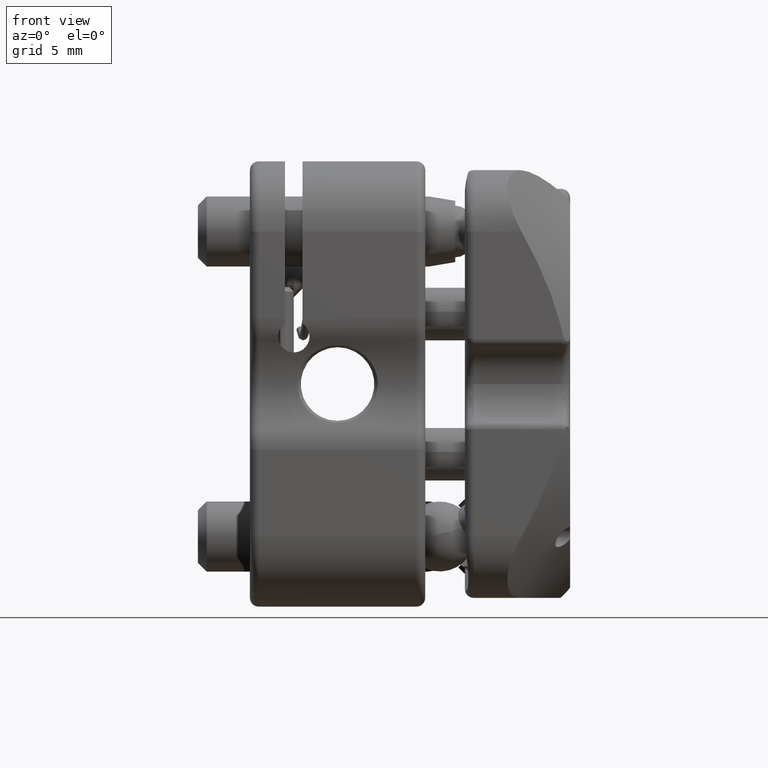
[diagram: clean part render]
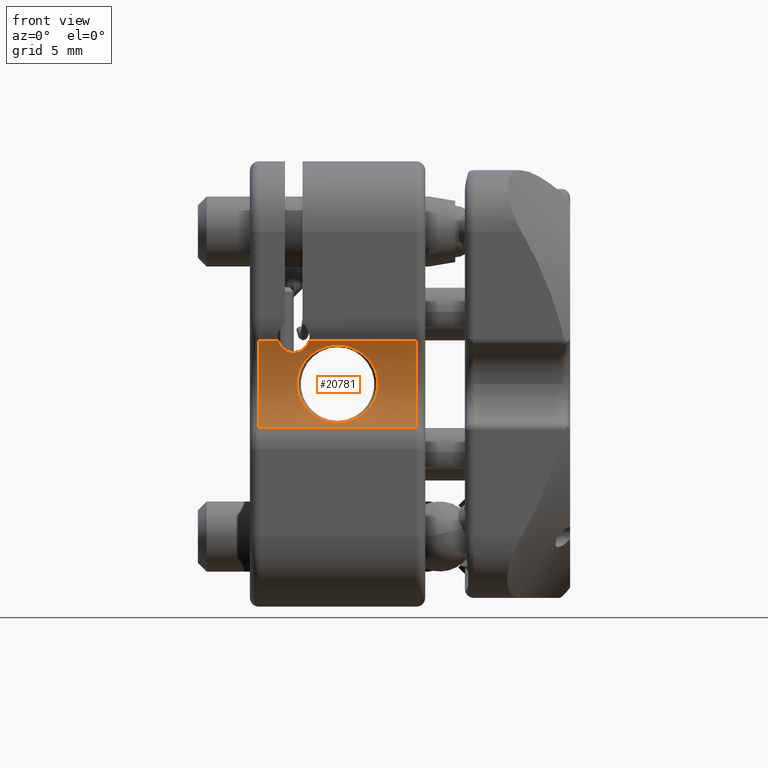
[diagram: same view with one face highlighted and labeled with its STEP entity id]
A machine part, front view. The second image highlights one B-rep face of the part: STEP entity #20781.
In plain terms, the highlighted cylindrical surface (partial cylindrical patch) has radius 5 mm, axis along (-1, 0, 0).
Its self-contained STEP definition (entity closure, byte-faithful):
#195 = CARTESIAN_POINT ( 'NONE',  ( -16.73207782478297645, 0.5220016386242981588, 7.743418047382663261 ) ) ;
#488 = CARTESIAN_POINT ( 'NONE',  ( -16.83384521158561142, 0.4372832412205611696, 7.919107547975817063 ) ) ;
#1123 = CARTESIAN_POINT ( 'NONE',  ( -12.89271433321157723, 0.5144612741522207600, 3.452399975789759878 ) ) ;
#1274 = CARTESIAN_POINT ( 'NONE',  ( -9.000000000000001776, 0.3333333333333278192, 8.099689127586877646 ) ) ;
#1412 = CARTESIAN_POINT ( 'NONE',  ( -13.19585157060656577, 0.4842849794610407099, 3.393647779630147188 ) ) ;
#1465 = AXIS2_PLACEMENT_3D ( 'NONE', #7992, #10932, #24000 ) ;
#1735 = VERTEX_POINT ( 'NONE', #18975 ) ;
#2233 = EDGE_CURVE ( 'NONE', #42876, #18461, #24225, .T. ) ;
#3386 = CARTESIAN_POINT ( 'NONE',  ( -13.49999999999999822, 0.4843168524465564784, 3.393712408199161423 ) ) ;
#4134 = CARTESIAN_POINT ( 'NONE',  ( -15.79992092743605703, 0.9999650210742575540, 5.753598992423793135 ) ) ;
#4465 = CARTESIAN_POINT ( 'NONE',  ( -13.19395894131952574, 0.4916991702465550729, 7.801991388709747177 ) ) ;
#4609 = CARTESIAN_POINT ( 'NONE',  ( -11.20016222801968553, 0.9999310325169963320, 5.456361497769407265 ) ) ;
#4897 = CARTESIAN_POINT ( 'NONE',  ( -11.21502257047841944, 0.9935596431238917781, 5.896807268216059050 ) ) ;
#5727 = B_SPLINE_CURVE_WITH_KNOTS ( 'NONE', 3,
 ( #3386, #33310, #40009, #29846, #33145, #39853, #13468, #12871, #9506, #20160, #32709, #36070, #16218, #39397, #19562, #4134, #33904, #33603, #30297, #14056, #40314, #27423, #20461, #13767, #7345, #36947, #40753, #20601 ),
 .UNSPECIFIED., .F., .F.,
 ( 4, 2, 2, 2, 2, 2, 2, 2, 2, 2, 2, 2, 2, 4 ),
 ( 0.0000000000000000000, 0.03124999999999992367, 0.06249999999999984734, 0.09374999999999977796, 0.1249999999999996947, 0.1874999999999996392, 0.2187499999999997224, 0.2499999999999997780, 0.2812499999999998890, 0.3124999999999998890, 0.3750000000000000000, 0.4375000000000001665, 0.4687500000000000555, 0.5000000000000000000 ),
 .UNSPECIFIED. ) ;
#6374 = ORIENTED_EDGE ( 'NONE', *, *, #20529, .T. ) ;
#7150 = LINE ( 'NONE', #19867, #26950 ) ;
#7345 = CARTESIAN_POINT ( 'NONE',  ( -14.10392599552661430, 0.5194647987167151371, 7.744288392959989054 ) ) ;
#7817 = CARTESIAN_POINT ( 'NONE',  ( -11.32097254235742234, 0.9493934958361103238, 4.883030281688116148 ) ) ;
#7992 = CARTESIAN_POINT ( 'NONE',  ( -9.000000000000001776, -4.000000000000007105, 5.605250869737585795 ) ) ;
#8107 = CARTESIAN_POINT ( 'NONE',  ( -11.19984033455274464, 1.000067877631775071, 5.749471513497193875 ) ) ;
#8461 = EDGE_CURVE ( 'NONE', #14117, #20370, #27224, .T. ) ;
#8840 = EDGE_LOOP ( 'NONE', ( #12995, #42933 ) ) ;
#8962 = AXIS2_PLACEMENT_3D ( 'NONE', #15935, #13018, #12589 ) ;
#9506 = CARTESIAN_POINT ( 'NONE',  ( -15.02089025201255446, 0.7157850331629382890, 3.940125060246654876 ) ) ;
#9646 = B_SPLINE_CURVE_WITH_KNOTS ( 'NONE', 3,
 ( #34529, #11627, #4465, #14540, #14698, #24978, #28043, #34674, #34388, #38167, #34811, #37739, #31056, #4897, #8107, #4609, #34952, #14986, #7817, #28321, #41235, #24397, #21374, #18314, #17893, #1123, #1412, #24698 ),
 .UNSPECIFIED., .F., .F.,
 ( 4, 2, 2, 2, 2, 2, 2, 2, 2, 2, 2, 2, 2, 4 ),
 ( 0.5000000000000000000, 0.5312500000000002220, 0.5625000000000004441, 0.6250000000000006661, 0.6562500000000006661, 0.6875000000000006661, 0.7187500000000007772, 0.7500000000000007772, 0.7812500000000007772, 0.8125000000000008882, 0.8750000000000005551, 0.9062500000000004441, 0.9375000000000002220, 1.000000000000000000 ),
 .UNSPECIFIED. ) ;
#10120 = CARTESIAN_POINT ( 'NONE',  ( -15.57873006826380546, 0.6355971599576105691, 7.484457838895064441 ) ) ;
#10740 = VECTOR ( 'NONE', #20632, 1000.000000000000000 ) ;
#10932 = DIRECTION ( 'NONE',  ( 1.000000000000000000, -0.0000000000000000000, -0.0000000000000000000 ) ) ;
#11627 = CARTESIAN_POINT ( 'NONE',  ( -13.34539002772576666, 0.4844056957484229042, 7.816609184278833666 ) ) ;
#12589 = DIRECTION ( 'NONE',  ( 0.0000000000000000000, -1.000000000000000000, 0.0000000000000000000 ) ) ;
#12729 = CARTESIAN_POINT ( 'NONE',  ( -9.000000000000001776, 0.3333333333333278192, 3.110812611888293500 ) ) ;
#12749 = CARTESIAN_POINT ( 'NONE',  ( -15.28072213350066733, 0.5149408190361393078, 7.755594036747993414 ) ) ;
#12871 = CARTESIAN_POINT ( 'NONE',  ( -14.90403635588739562, 0.6817343741012712455, 3.847794715834321977 ) ) ;
#12995 = ORIENTED_EDGE ( 'NONE', *, *, #28367, .T. ) ;
#13018 = DIRECTION ( 'NONE',  ( -1.000000000000000000, 0.0000000000000000000, 0.0000000000000000000 ) ) ;
#13468 = CARTESIAN_POINT ( 'NONE',  ( -14.65769571593376241, 0.6190055997106769237, 3.688984668925369803 ) ) ;
#13615 = DIRECTION ( 'NONE',  ( -1.000000000000000000, 0.0000000000000000000, 0.0000000000000000000 ) ) ;
#13767 = CARTESIAN_POINT ( 'NONE',  ( -14.24571728006381477, 0.5393769007704554141, 7.702341835394189040 ) ) ;
#13941 = ORIENTED_EDGE ( 'NONE', *, *, #38920, .T. ) ;
#14056 = CARTESIAN_POINT ( 'NONE',  ( -15.50503941541396458, 0.8801157400671859588, 6.727073294027504424 ) ) ;
#14117 = VERTEX_POINT ( 'NONE', #22943 ) ;
#14540 = CARTESIAN_POINT ( 'NONE',  ( -12.89586865464874954, 0.5195330242406136501, 7.744141139593931911 ) ) ;
#14698 = CARTESIAN_POINT ( 'NONE',  ( -12.74867521617533050, 0.5402913714008955592, 7.700342642349582434 ) ) ;
#14986 = CARTESIAN_POINT ( 'NONE',  ( -11.27538806378306901, 0.9682941506458706549, 5.025068367314447393 ) ) ;
#15935 = CARTESIAN_POINT ( 'NONE',  ( -18.00000000000000355, -4.000000000000007105, 5.605250869737585795 ) ) ;
#16218 = CARTESIAN_POINT ( 'NONE',  ( -15.72520163049641262, 0.9685389942114351891, 5.026960452250261113 ) ) ;
#16514 = CARTESIAN_POINT ( 'NONE',  ( -15.17979762852386827, 0.4317665214357067627, 7.922169477455333286 ) ) ;
#16824 = CARTESIAN_POINT ( 'NONE',  ( -15.78632397007309685, 0.6645977154186614166, 7.405675363737428185 ) ) ;
#17569 = VERTEX_POINT ( 'NONE', #35538 ) ;
#17893 = CARTESIAN_POINT ( 'NONE',  ( -12.47352515345010993, 0.5897545816279353703, 3.620827837147673645 ) ) ;
#18057 = LINE ( 'NONE', #30905, #10740 ) ;
#18314 = CARTESIAN_POINT ( 'NONE',  ( -12.34316268574841935, 0.6187644993440789554, 3.688347142796576605 ) ) ;
#18461 = VERTEX_POINT ( 'NONE', #20994 ) ;
#18776 = ORIENTED_EDGE ( 'NONE', *, *, #8461, .T. ) ;
#18975 = CARTESIAN_POINT ( 'NONE',  ( -13.49673093385898426, 0.4843179541238020192, 7.816787097413462782 ) ) ;
#19209 = CARTESIAN_POINT ( 'NONE',  ( -18.00000000000000355, 0.3333333333333278192, 8.099689127586877646 ) ) ;
#19562 = CARTESIAN_POINT ( 'NONE',  ( -15.80007841369381438, 1.000034698710987824, 5.459270086218844575 ) ) ;
#19858 = CARTESIAN_POINT ( 'NONE',  ( -8.500000000000000000, -4.000000000000007105, 5.605250869737585795 ) ) ;
#19867 = CARTESIAN_POINT ( 'NONE',  ( -8.500000000000000000, 0.3333333333333278192, 8.099689127586877646 ) ) ;
#19916 = EDGE_CURVE ( 'NONE', #1735, #17569, #9646, .T. ) ;
#20160 = CARTESIAN_POINT ( 'NONE',  ( -15.33572699143959817, 0.8154346850731156726, 4.242650944763052046 ) ) ;
#20320 = CARTESIAN_POINT ( 'NONE',  ( -15.34515098324822446, 0.5499678380533923328, 7.679579107568803131 ) ) ;
#20370 = VERTEX_POINT ( 'NONE', #12729 ) ;
#20461 = CARTESIAN_POINT ( 'NONE',  ( -14.66319642768533704, 0.6142110730783755246, 7.535014802198962691 ) ) ;
#20529 = EDGE_CURVE ( 'NONE', #29398, #14117, #24706, .T. ) ;
#20601 = CARTESIAN_POINT ( 'NONE',  ( -13.49673093385898426, 0.4843179541238020192, 7.816787097413462782 ) ) ;
#20632 = DIRECTION ( 'NONE',  ( -1.000000000000000000, 0.0000000000000000000, 0.0000000000000000000 ) ) ;
#20781 = ADVANCED_FACE ( 'NONE', ( #32395, #38658 ), #35025, .F. ) ;
#20994 = CARTESIAN_POINT ( 'NONE',  ( -16.87621023171608670, 0.3333333333333278192, 8.099689127586877646 ) ) ;
#21235 = CARTESIAN_POINT ( 'NONE',  ( -15.12378976828391508, 0.3333333333333278192, 8.099689127586875870 ) ) ;
#21374 = CARTESIAN_POINT ( 'NONE',  ( -12.09344051932874997, 0.6823995299857952279, 3.849506002067372812 ) ) ;
#22943 = CARTESIAN_POINT ( 'NONE',  ( -18.00000000000000355, 0.3333333333333278192, 3.110812611888293500 ) ) ;
#23569 = VECTOR ( 'NONE', #28041, 1000.000000000000000 ) ;
#23609 = ORIENTED_EDGE ( 'NONE', *, *, #33778, .T. ) ;
#23643 = CARTESIAN_POINT ( 'NONE',  ( -16.41837107158072229, 0.6363103297424967941, 7.482718372945718954 ) ) ;
#23998 = AXIS2_PLACEMENT_3D ( 'NONE', #19858, #13615, #33139 ) ;
#24000 = DIRECTION ( 'NONE',  ( 0.0000000000000000000, -1.000000000000000000, 1.908195823574487409E-15 ) ) ;
#24225 = B_SPLINE_CURVE_WITH_KNOTS ( 'NONE', 3,
 ( #26393, #36378, #16514, #12749, #20320, #10120, #16824, #26552, #23643, #195, #488, #26846 ),
 .UNSPECIFIED., .F., .F.,
 ( 4, 2, 2, 2, 2, 4 ),
 ( 1.964321818484475877E-18, 0.0003145531809597261214, 0.0006291063619194502913, 0.001258212723838900366, 0.001887319085758350223, 0.002516425447677800731 ),
 .UNSPECIFIED. ) ;
#24397 = CARTESIAN_POINT ( 'NONE',  ( -11.97957691793452817, 0.7156420093822096762, 3.939719384161359361 ) ) ;
#24698 = CARTESIAN_POINT ( 'NONE',  ( -13.49999999999999822, 0.4843168524465564784, 3.393712408199161423 ) ) ;
#24706 = CIRCLE ( 'NONE', #8962, 5.000000000000000888 ) ;
#24978 = CARTESIAN_POINT ( 'NONE',  ( -12.33739979610329840, 0.6142891387187077168, 7.534747393662518888 ) ) ;
#26393 = CARTESIAN_POINT ( 'NONE',  ( -15.12378976828391508, 0.3333333333333278192, 8.099689127586875870 ) ) ;
#26552 = CARTESIAN_POINT ( 'NONE',  ( -16.21008502577761590, 0.6649239341271686587, 7.404829957772089521 ) ) ;
#26846 = CARTESIAN_POINT ( 'NONE',  ( -16.87621023171608670, 0.3333333333333278192, 8.099689127586877646 ) ) ;
#26950 = VECTOR ( 'NONE', #35783, 1000.000000000000000 ) ;
#27224 = LINE ( 'NONE', #31745, #23569 ) ;
#27423 = CARTESIAN_POINT ( 'NONE',  ( -14.91359319246950221, 0.6818478899306731345, 7.373296741317214575 ) ) ;
#28041 = DIRECTION ( 'NONE',  ( 1.000000000000000000, -0.0000000000000000000, -0.0000000000000000000 ) ) ;
#28043 = CARTESIAN_POINT ( 'NONE',  ( -12.08379744806180867, 0.6826420316695555046, 7.371025098925900743 ) ) ;
#28321 = CARTESIAN_POINT ( 'NONE',  ( -11.49427292443260384, 0.8803976432052977863, 4.485378974427400856 ) ) ;
#28367 = EDGE_CURVE ( 'NONE', #17569, #1735, #5727, .T. ) ;
#29037 = CIRCLE ( 'NONE', #1465, 5.000000000000000888 ) ;
#29398 = VERTEX_POINT ( 'NONE', #19209 ) ;
#29846 = CARTESIAN_POINT ( 'NONE',  ( -14.10167188187518761, 0.5192781082582011987, 3.465828127608825859 ) ) ;
#30297 = CARTESIAN_POINT ( 'NONE',  ( -15.68003144363655466, 0.9497972816727198175, 6.324980449071452071 ) ) ;
#30905 = CARTESIAN_POINT ( 'NONE',  ( -8.500000000000000000, 0.3333333333333278192, 8.099689127586877646 ) ) ;
#31056 = CARTESIAN_POINT ( 'NONE',  ( -11.27471068347962202, 0.9685777256619354514, 6.183073011045282286 ) ) ;
#31745 = CARTESIAN_POINT ( 'NONE',  ( -8.500000000000000000, 0.3333333333333278192, 3.110812611888293500 ) ) ;
#32395 = FACE_BOUND ( 'NONE', #8840, .T. ) ;
#32709 = CARTESIAN_POINT ( 'NONE',  ( -15.50600339019190699, 0.8804937508988053274, 4.485149940175767291 ) ) ;
#33139 = DIRECTION ( 'NONE',  ( 0.0000000000000000000, -1.000000000000000000, 0.0000000000000000000 ) ) ;
#33145 = CARTESIAN_POINT ( 'NONE',  ( -14.24873029863763385, 0.5398654433724674462, 3.509226531102281221 ) ) ;
#33310 = CARTESIAN_POINT ( 'NONE',  ( -13.65370803237590103, 0.4843329601539004825, 3.393745069653959057 ) ) ;
#33603 = CARTESIAN_POINT ( 'NONE',  ( -15.72432639892216955, 0.9681759366116267085, 6.186250365594769818 ) ) ;
#33778 = EDGE_CURVE ( 'NONE', #20370, #42881, #29037, .T. ) ;
#33904 = CARTESIAN_POINT ( 'NONE',  ( -15.78415140706694508, 0.9932127301738177261, 5.902166990120502277 ) ) ;
#34388 = CARTESIAN_POINT ( 'NONE',  ( -11.67344916291895984, 0.8154130080366054356, 6.956903070653624788 ) ) ;
#34529 = CARTESIAN_POINT ( 'NONE',  ( -13.49673093385898426, 0.4843179541238020192, 7.816787097413462782 ) ) ;
#34674 = CARTESIAN_POINT ( 'NONE',  ( -11.76902253548777111, 0.7822842342301887797, 7.068477188301914182 ) ) ;
#34811 = CARTESIAN_POINT ( 'NONE',  ( -11.43640167230373450, 0.9034316884909078249, 6.592730769013288139 ) ) ;
#34952 = CARTESIAN_POINT ( 'NONE',  ( -11.21545803636545635, 0.9933774446807507319, 5.310733979876433253 ) ) ;
#35025 = CYLINDRICAL_SURFACE ( 'NONE', #23998, 5.000000000000000888 ) ;
#35310 = EDGE_CURVE ( 'NONE', #18461, #29398, #7150, .T. ) ;
#35538 = CARTESIAN_POINT ( 'NONE',  ( -13.49999999999999822, 0.4843168524465564784, 3.393712408199161423 ) ) ;
#35581 = ORIENTED_EDGE ( 'NONE', *, *, #2233, .T. ) ;
#35783 = DIRECTION ( 'NONE',  ( -1.000000000000000000, 0.0000000000000000000, 0.0000000000000000000 ) ) ;
#36070 = CARTESIAN_POINT ( 'NONE',  ( -15.68048027271323797, 0.9499789479816628246, 4.886801323297349064 ) ) ;
#36378 = CARTESIAN_POINT ( 'NONE',  ( -15.14495489081882162, 0.3852656239624879797, 8.009472452408985532 ) ) ;
#36947 = CARTESIAN_POINT ( 'NONE',  ( -13.80282276366856564, 0.4914482775333142706, 7.802507332428266551 ) ) ;
#37672 = EDGE_LOOP ( 'NONE', ( #13941, #35581, #41500, #6374, #18776, #23609 ) ) ;
#37739 = CARTESIAN_POINT ( 'NONE',  ( -11.31911998769728633, 0.9501373144495830481, 6.322815809840027335 ) ) ;
#38167 = CARTESIAN_POINT ( 'NONE',  ( -11.50685388128489528, 0.8761164953174305214, 6.718199221774900920 ) ) ;
#38658 = FACE_OUTER_BOUND ( 'NONE', #37672, .T. ) ;
#38920 = EDGE_CURVE ( 'NONE', #42881, #42876, #18057, .T. ) ;
#39397 = CARTESIAN_POINT ( 'NONE',  ( -15.78509573944759659, 0.9936111932968808569, 5.314309648633822825 ) ) ;
#39853 = CARTESIAN_POINT ( 'NONE',  ( -14.52498404922938846, 0.5894884354441544128, 3.620233949657702954 ) ) ;
#40009 = CARTESIAN_POINT ( 'NONE',  ( -13.80680983259149741, 0.4917963480114620478, 3.408714993110378622 ) ) ;
#40314 = CARTESIAN_POINT ( 'NONE',  ( -15.33649589620681297, 0.8156544621912363846, 6.967292708021455283 ) ) ;
#40753 = CARTESIAN_POINT ( 'NONE',  ( -13.64807183999219831, 0.4842302124991815782, 7.816965010548093673 ) ) ;
#41235 = CARTESIAN_POINT ( 'NONE',  ( -11.66458277696510848, 0.8153269863264229755, 4.242267093186736560 ) ) ;
#41500 = ORIENTED_EDGE ( 'NONE', *, *, #35310, .T. ) ;
#42876 = VERTEX_POINT ( 'NONE', #21235 ) ;
#42881 = VERTEX_POINT ( 'NONE', #1274 ) ;
#42933 = ORIENTED_EDGE ( 'NONE', *, *, #19916, .T. ) ;